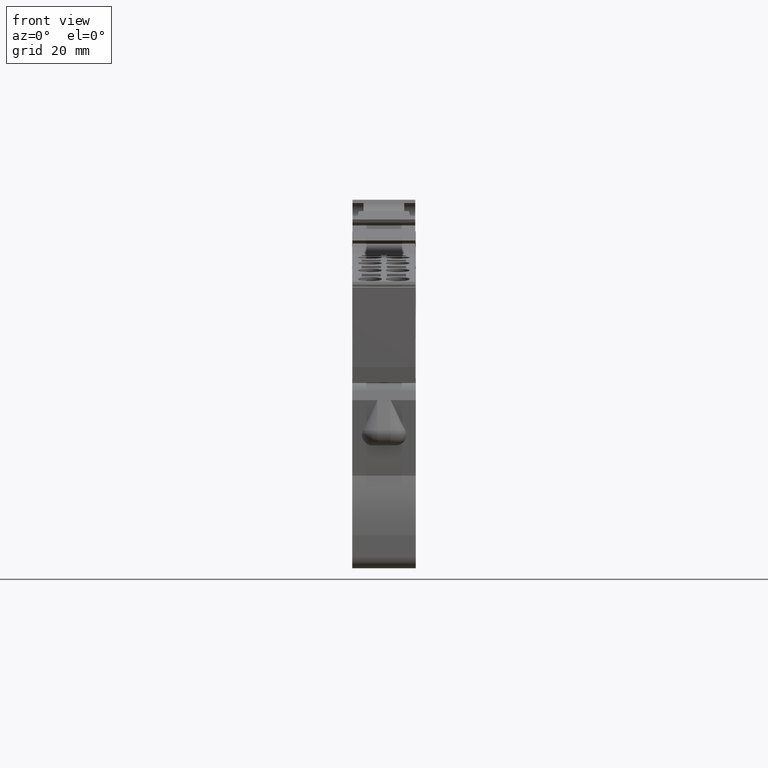
[diagram: clean part render]
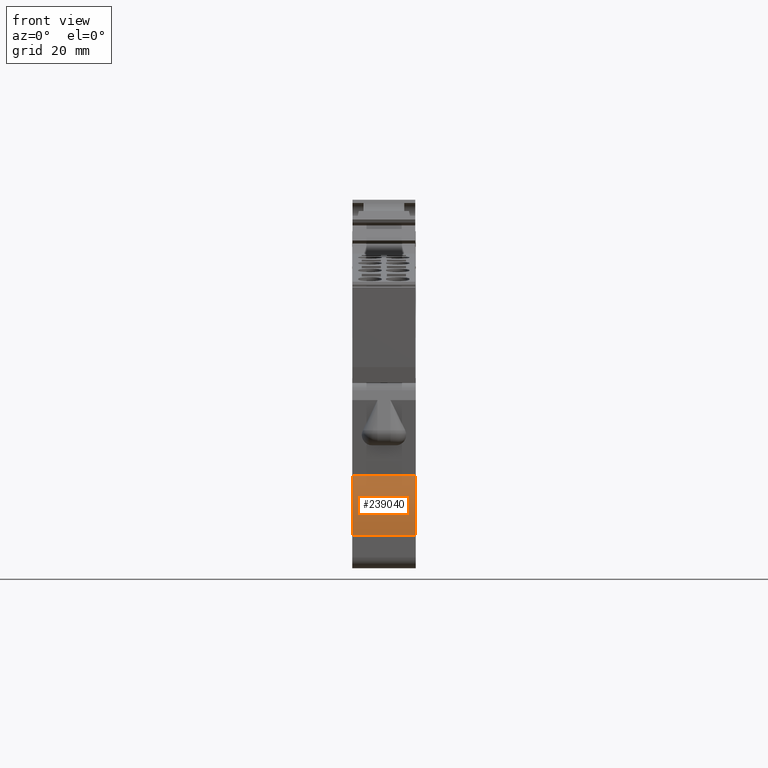
[diagram: same view with one face highlighted and labeled with its STEP entity id]
A machine part, front view. The second image highlights one B-rep face of the part: STEP entity #239040.
In plain terms, the highlighted cylindrical surface (partial cylindrical patch) has radius 30 mm, axis along (1, 0, 0).
Its self-contained STEP definition (entity closure, byte-faithful):
#178070=CARTESIAN_POINT('',(176.802689507967,-56.6770591260145,36.45));
#178080=VERTEX_POINT('',#178070);
#178110=CARTESIAN_POINT('',(206.774136155416,-57.9856407469757,36.45));
#178120=DIRECTION('',(0.,1.19110369467609E-44,1.));
#178130=DIRECTION('',(1.,0.,0.));
#178140=AXIS2_PLACEMENT_3D('',#178110,#178120,#178130);
#178150=CIRCLE('',#178140,29.9999999999933);
#178160=CARTESIAN_POINT('',(179.617847465003,-45.2366806104567,36.45));
#178170=VERTEX_POINT('',#178160);
#178180=EDGE_CURVE('',#178170,#178080,#178150,.T.);
#183340=CARTESIAN_POINT('',(179.617847465003,-45.2366806104566,24.3));
#183350=VERTEX_POINT('',#183340);
#183380=CARTESIAN_POINT('',(206.774136155416,-57.9856407469757,24.3));
#183390=DIRECTION('',(0.,1.19110369467609E-44,1.));
#183400=DIRECTION('',(1.,0.,0.));
#183410=AXIS2_PLACEMENT_3D('',#183380,#183390,#183400);
#183420=CIRCLE('',#183410,29.9999999999933);
#183430=CARTESIAN_POINT('',(176.802689507967,-56.6770591260145,24.3));
#183440=VERTEX_POINT('',#183430);
#183450=EDGE_CURVE('',#183350,#183440,#183420,.T.);
#238720=CARTESIAN_POINT('',(179.617847465003,-45.2366806104567,24.3));
#238730=DIRECTION('',(0.,1.19110369467609E-44,1.));
#238740=VECTOR('',#238730,1.);
#238750=LINE('',#238720,#238740);
#238760=EDGE_CURVE('',#183350,#178170,#238750,.T.);
#238880=CARTESIAN_POINT('',(206.774136155416,-57.9856407469757,24.3));
#238890=DIRECTION('',(0.,1.19110369467609E-44,1.));
#238900=DIRECTION('',(1.,0.,0.));
#238910=AXIS2_PLACEMENT_3D('',#238880,#238890,#238900);
#238920=CYLINDRICAL_SURFACE('',#238910,29.9999999999933);
#238930=ORIENTED_EDGE('',*,*,#183450,.T.);
#238940=ORIENTED_EDGE('',*,*,#238760,.F.);
#238950=ORIENTED_EDGE('',*,*,#178180,.F.);
#238960=CARTESIAN_POINT('',(176.802689507967,-56.6770591260145,24.3));
#238970=DIRECTION('',(0.,1.19110369467609E-44,1.));
#238980=VECTOR('',#238970,1.);
#238990=LINE('',#238960,#238980);
#239000=EDGE_CURVE('',#183440,#178080,#238990,.T.);
#239010=ORIENTED_EDGE('',*,*,#239000,.T.);
#239020=EDGE_LOOP('',(#239010,#238950,#238940,#238930));
#239030=FACE_OUTER_BOUND('',#239020,.T.);
#239040=ADVANCED_FACE('',(#239030),#238920,.T.);